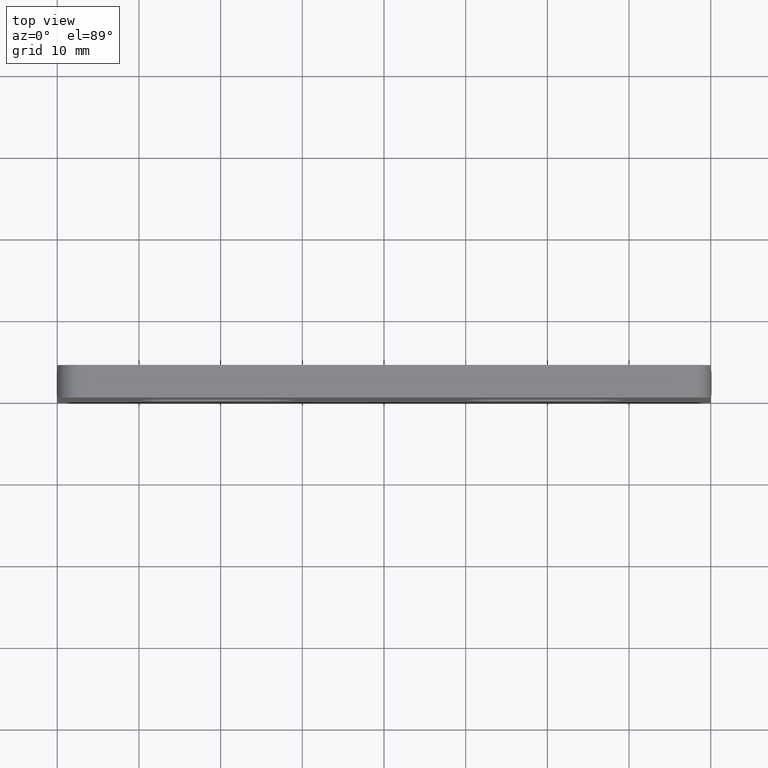
[diagram: clean part render]
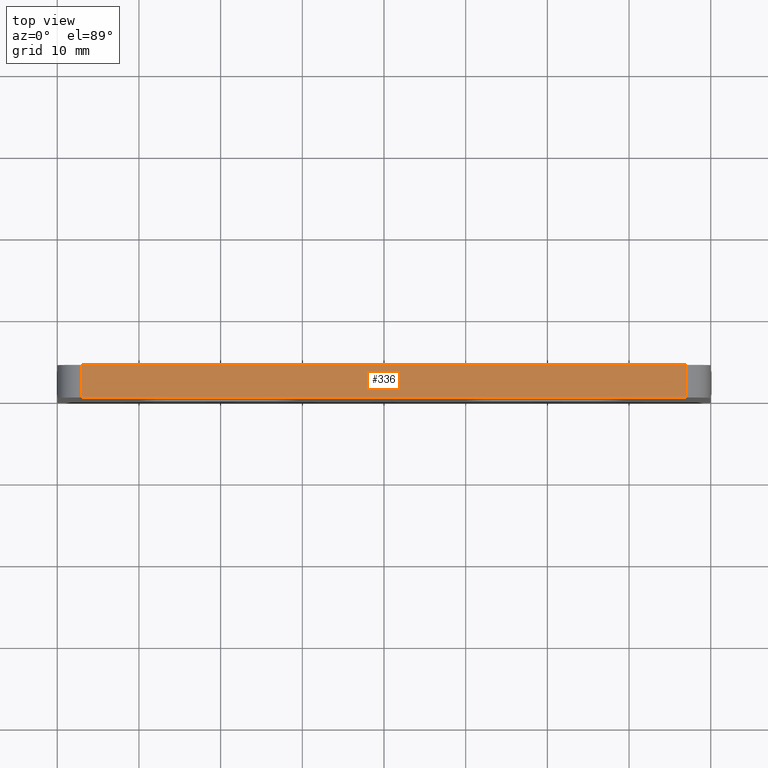
[diagram: same view with one face highlighted and labeled with its STEP entity id]
A machine part, top view. The second image highlights one B-rep face of the part: STEP entity #336.
In plain terms, the highlighted planar face has unit normal (0, 0, -1).
Its self-contained STEP definition (entity closure, byte-faithful):
#30=FACE_OUTER_BOUND('',#52,.T.);
#52=EDGE_LOOP('',(#263,#264,#265,#266));
#85=LINE('',#522,#117);
#94=LINE('',#559,#126);
#101=LINE('',#581,#133);
#102=LINE('',#582,#134);
#117=VECTOR('',#418,1000.);
#126=VECTOR('',#447,1000.);
#133=VECTOR('',#468,1000.);
#134=VECTOR('',#469,1000.);
#151=VERTEX_POINT('',#519);
#152=VERTEX_POINT('',#521);
#169=VERTEX_POINT('',#556);
#170=VERTEX_POINT('',#558);
#183=EDGE_CURVE('',#151,#152,#85,.T.);
#201=EDGE_CURVE('',#170,#169,#94,.T.);
#213=EDGE_CURVE('',#169,#152,#101,.T.);
#214=EDGE_CURVE('',#151,#170,#102,.T.);
#263=ORIENTED_EDGE('',*,*,#201,.T.);
#264=ORIENTED_EDGE('',*,*,#213,.T.);
#265=ORIENTED_EDGE('',*,*,#183,.F.);
#266=ORIENTED_EDGE('',*,*,#214,.T.);
#326=PLANE('',#393);
#336=ADVANCED_FACE('',(#30),#326,.F.);
#393=AXIS2_PLACEMENT_3D('',#580,#466,#467);
#418=DIRECTION('',(1.,0.,0.));
#447=DIRECTION('',(1.,0.,0.));
#466=DIRECTION('center_axis',(0.,0.,-1.));
#467=DIRECTION('ref_axis',(-1.,0.,0.));
#468=DIRECTION('',(0.,1.,0.));
#469=DIRECTION('',(0.,-1.,0.));
#519=CARTESIAN_POINT('',(-37.,4.,20.));
#521=CARTESIAN_POINT('',(37.,4.,20.));
#522=CARTESIAN_POINT('',(-40.,4.,20.));
#556=CARTESIAN_POINT('',(37.,0.,20.));
#558=CARTESIAN_POINT('',(-37.,0.,20.));
#559=CARTESIAN_POINT('',(-40.,0.,20.));
#580=CARTESIAN_POINT('Origin',(-40.,4.,20.));
#581=CARTESIAN_POINT('',(37.,4.,20.));
#582=CARTESIAN_POINT('',(-37.,4.,20.));